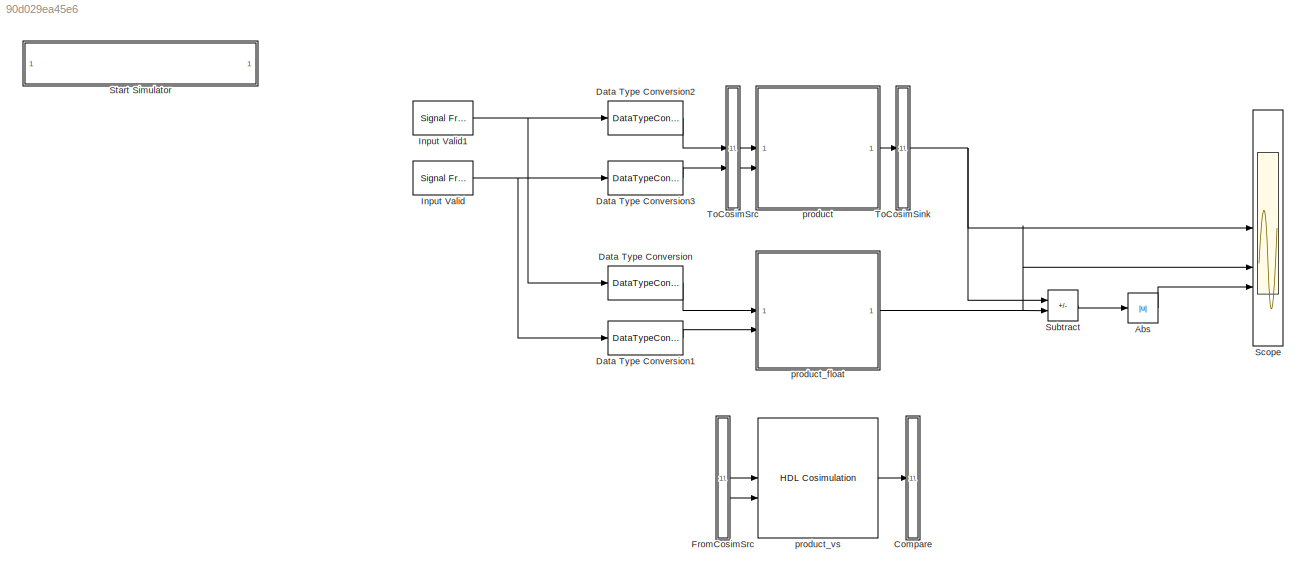
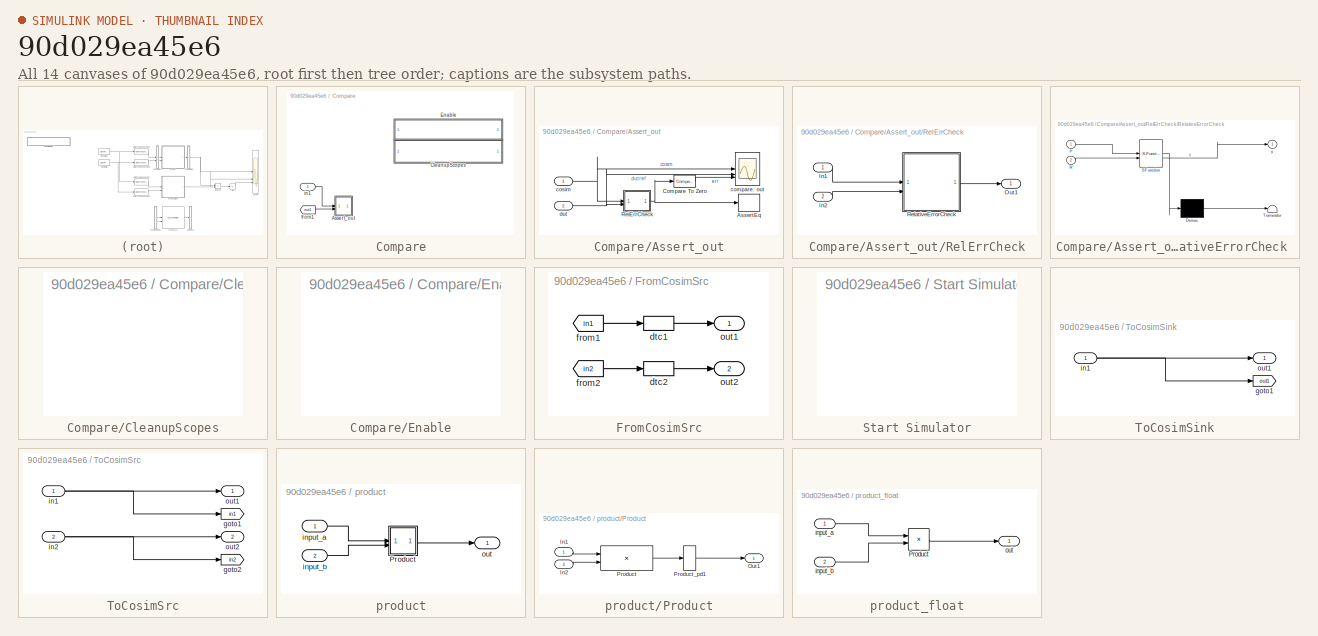
[diagram: thumbnail index - all 14 canvases of the model, root first then tree order]
MODEL slx_90d029ea45e6
KIND model
CONFIG AbsTol = auto
CONFIG EnableMultiTasking = off
CONFIG FixedStep = auto
CONFIG MaxStep = auto
CONFIG MinStep = auto
CONFIG RelTol = 1e-3
CONFIG SampleTimeConstraint = Unconstrained
CONFIG SolverName = VariableStepAuto
CONFIG StartTime = 0.0
CONFIG StopTime = 10.0
BLOCK [Abs] Abs
  SaturateOnIntegerOverflow = off
BLOCK [SubSystem] Compare
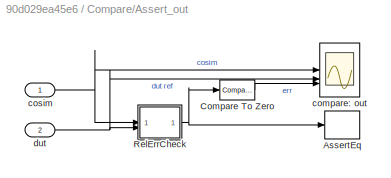
BLOCK [SubSystem] Compare/Assert_out
  LibrarySourceBlock = hdlmdlgenlib/AssertRelEq
BLOCK [Assertion] Compare/Assert_out/AssertEq
  StopWhenAssertionFail = off
BLOCK [Reference] Compare/Assert_out/Compare To Zero  REF=simulink/Logic and Bit
Operations/Compare
To Zero
  SourceBlock = simulink/Logic and Bit\nOperations/Compare\nTo Zero
  SourceType = Compare To Zero
BLOCK [SubSystem] Compare/Assert_out/RelErrCheck
BLOCK [Inport] Compare/Assert_out/RelErrCheck/In1
BLOCK [Inport] Compare/Assert_out/RelErrCheck/In2
  Port = 2
BLOCK [Outport] Compare/Assert_out/RelErrCheck/Out1
  VectorParamsAs1DForOutWhenUnconnected = off
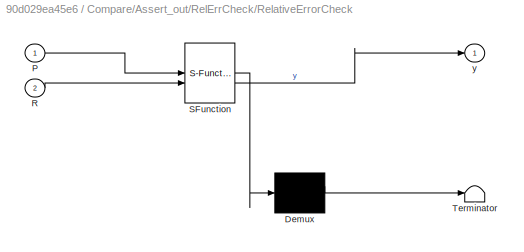
BLOCK [SubSystem] Compare/Assert_out/RelErrCheck/RelativeErrorCheck 
  ErrorFcn = Stateflow.Translate.translate
  PermitHierarchicalResolution = ExplicitOnly
  SFBlockType = MATLAB Function
  TreatAsAtomicUnit = on
BLOCK [Demux] Compare/Assert_out/RelErrCheck/RelativeErrorCheck / Demux 
  Outputs = 1
BLOCK [S-Function] Compare/Assert_out/RelErrCheck/RelativeErrorCheck / SFunction 
  EnableBusSupport = on
  FunctionName = sf_sfun
  Parameters = ToleranceValue
  PortCounts = [2 2]
  SFcnIsStateOwnerBlock = off
  SFunctionDeploymentMode = off
  Tag = Stateflow S-Function 8
BLOCK [Terminator] Compare/Assert_out/RelErrCheck/RelativeErrorCheck / Terminator 
BLOCK [Inport] Compare/Assert_out/RelErrCheck/RelativeErrorCheck /P
BLOCK [Inport] Compare/Assert_out/RelErrCheck/RelativeErrorCheck /R
  Port = 2
BLOCK [Outport] Compare/Assert_out/RelErrCheck/RelativeErrorCheck /y
  VectorParamsAs1DForOutWhenUnconnected = off
BLOCK [Scope] Compare/Assert_out/compare: out
  Floating = off
  NumInputPorts = 3
  ScopeSpecificationString = Simulink.scopes.TimeScopeBlockCfg('CurrentConfiguration', extmgr.ConfigurationSet(extmgr.Configuration('Core','General UI',true,'MessageLogAutoOpenMode','for warn/fail messages','ShowCloseAll',true,'ShowBringAllForward',true),extmgr.Configuration('Core','Source UI',true,'PlaybackToolbar',true),extmgr.Configuration('Sources','WiredSimulink',true,'PointsPerSignal',50000,'DataLoggingDecimation','1','...<+3528ch>
BLOCK [Inport] Compare/Assert_out/cosim
BLOCK [Inport] Compare/Assert_out/dut
  Port = 2
BLOCK [SubSystem] Compare/CleanupScopes
  OpenFcn = blkName = gcb; %self block\nidx = regexp(blkName, '/CleanupScopes$', 'once');\nblkParent = blkName(1:idx-1);\nblks=find_system(blkParent, 'LookUnderMasks', 'all','blocktype', 'Scope');\nfor itr = 1:length(blks)\n	 hScopeCfg = get_param(blks{itr},'ScopeConfiguration');\n	 hScopeCfg.Visible = ~ hScopeCfg.Visible;\nend\ndrawnow;
BLOCK [SubSystem] Compare/Enable
  OpenFcn = blkName = gcb;\nidx = regexp(blkName, '/Enable$', 'once');\nblkParent = blkName(1:idx-1);\nblks=find_system(blkParent, 'LookUnderMasks', 'all','blocktype', 'Assertion');\ne = get_param(blks{1}, 'Enabled');\nif strcmp(e, 'on'), f= 'off';, else, f = 'on';, end\nfor ii=1:length(blks), set_param(blks{ii}, 'Enabled', f);, end\nset_param(gcb, 'MaskDisplay',['fprintf(message(''hdlcoder:cosim:vnl_dblclick_assert...<+47ch>
BLOCK [From] Compare/from1
  GotoTag = out1
  TagVisibility = global
BLOCK [Inport] Compare/in1
BLOCK [DataTypeConversion] Data Type Conversion
  OutDataTypeStr = single
  RndMeth = Floor
  SaturateOnIntegerOverflow = off
BLOCK [DataTypeConversion] Data Type Conversion1
  OutDataTypeStr = single
  RndMeth = Floor
  SaturateOnIntegerOverflow = off
BLOCK [DataTypeConversion] Data Type Conversion2
  OutDataTypeStr = double
  RndMeth = Floor
  SaturateOnIntegerOverflow = off
BLOCK [DataTypeConversion] Data Type Conversion3
  OutDataTypeStr = double
  RndMeth = Floor
  SaturateOnIntegerOverflow = off
BLOCK [SubSystem] FromCosimSrc
BLOCK [DataTypeConversion] FromCosimSrc/dtc1
  OutDataTypeStr = double
BLOCK [DataTypeConversion] FromCosimSrc/dtc2
  OutDataTypeStr = double
BLOCK [From] FromCosimSrc/from1
  GotoTag = in1
  TagVisibility = global
BLOCK [From] FromCosimSrc/from2
  GotoTag = in2
  TagVisibility = global
BLOCK [Outport] FromCosimSrc/out1
BLOCK [Outport] FromCosimSrc/out2
  Port = 2
BLOCK [Reference] Input Valid  REF=dspsrcs4/Signal From
Workspace
  SourceBlock = dspsrcs4/Signal From\nWorkspace
  SourceType = Signal From Workspace
BLOCK [Reference] Input Valid1  REF=dspsrcs4/Signal From
Workspace
  SourceBlock = dspsrcs4/Signal From\nWorkspace
  SourceType = Signal From Workspace
BLOCK [Scope] Scope
  Floating = off
  NumInputPorts = 3
  ScopeSpecificationString = Simulink.scopes.TimeScopeBlockCfg('CurrentConfiguration', extmgr.ConfigurationSet(extmgr.Configuration('Core','General UI',true),extmgr.Configuration('Core','Source UI',true),extmgr.Configuration('Sources','WiredSimulink',true,'DataLoggingSaveFormat','Array','DataLoggingLimitDataPoints',true,'DataLoggingDecimation','1'),extmgr.Configuration('Visuals','Time Domain',true,'SerializedDisplays',{struct...<+3283ch>
BLOCK [SubSystem] Start Simulator
  OpenFcn = cosimDirName = pwd;\ncd 'hdl_prj/hdlsrc/HDLFixedPoint';\n[s,r] = system('vivado -mode batch -source gm_HDLFixedPoint_vs.tcl','-echo');\ncd (cosimDirName);\nclear cosimDirName;\nif s\n   error('Failed to create Vivado HDL design DLL using script gm_HDLFixedPoint_vs.tcl.');\nend
BLOCK [Sum] Subtract
  IconShape = rectangular
  Inputs = +-
BLOCK [SubSystem] ToCosimSink
BLOCK [Goto] ToCosimSink/goto1
  GotoTag = out1
  TagVisibility = global
BLOCK [Inport] ToCosimSink/in1
BLOCK [Outport] ToCosimSink/out1
BLOCK [SubSystem] ToCosimSrc
BLOCK [Goto] ToCosimSrc/goto1
  GotoTag = in1
  TagVisibility = global
BLOCK [Goto] ToCosimSrc/goto2
  GotoTag = in2
  TagVisibility = global
BLOCK [Inport] ToCosimSrc/in1
BLOCK [Inport] ToCosimSrc/in2
  Port = 2
BLOCK [Outport] ToCosimSrc/out1
BLOCK [Outport] ToCosimSrc/out2
  Port = 2
BLOCK [SubSystem] product
BLOCK [SubSystem] product/Product
BLOCK [Inport] product/Product/In1
BLOCK [Inport] product/Product/In2
  Port = 2
BLOCK [Outport] product/Product/Out1
BLOCK [Product] product/Product/Product
  Inputs = **
  OutDataTypeStr = double
  SampleTime = 1
BLOCK [Delay] product/Product/Product_pd1
  DelayLength = 9
  InputPortMap = u0
BLOCK [Inport] product/input_a
  OutDataTypeStr = double
  PortDimensions = 1
  SampleTime = 1
BLOCK [Inport] product/input_b
  OutDataTypeStr = double
  Port = 2
  PortDimensions = 1
  SampleTime = 1
BLOCK [Outport] product/out
  SampleTime = 1
BLOCK [SubSystem] product_float
BLOCK [Product] product_float/Product
BLOCK [Inport] product_float/input_a
BLOCK [Inport] product_float/input_b
  Port = 2
BLOCK [Outport] product_float/out
BLOCK [Reference] product_vs  REF=vivadosimlib/HDL Cosimulation
  SourceBlock = vivadosimlib/HDL Cosimulation
  SourceType = Simulink and Vivado Simulator Cosimulation
  UserDataPersistent = on
LINE Abs:1 -> Scope:3
LINE Compare/Assert_out/Compare To Zero:1 -> Compare/Assert_out/compare: out:3
LINE Compare/Assert_out/RelErrCheck/In1:1 -> Compare/Assert_out/RelErrCheck/RelativeErrorCheck :1
LINE Compare/Assert_out/RelErrCheck/In2:1 -> Compare/Assert_out/RelErrCheck/RelativeErrorCheck :2
LINE Compare/Assert_out/RelErrCheck/RelativeErrorCheck :1 -> Compare/Assert_out/RelErrCheck/Out1:1
NET Compare/Assert_out/RelErrCheck:1 -> Compare/Assert_out/AssertEq:1, Compare/Assert_out/Compare To Zero:1
NET Compare/Assert_out/cosim:1 -> Compare/Assert_out/RelErrCheck:1, Compare/Assert_out/compare: out:1
NET Compare/Assert_out/dut:1 -> Compare/Assert_out/RelErrCheck:2, Compare/Assert_out/compare: out:2
LINE Compare/from1:1 -> Compare/Assert_out:2
LINE Compare/in1:1 -> Compare/Assert_out:1
LINE Data Type Conversion1:1 -> product_float:2
LINE Data Type Conversion2:1 -> ToCosimSrc:1
LINE Data Type Conversion3:1 -> ToCosimSrc:2
LINE Data Type Conversion:1 -> product_float:1
LINE FromCosimSrc/dtc1:1 -> FromCosimSrc/out1:1
LINE FromCosimSrc/dtc2:1 -> FromCosimSrc/out2:1
LINE FromCosimSrc/from1:1 -> FromCosimSrc/dtc1:1
LINE FromCosimSrc/from2:1 -> FromCosimSrc/dtc2:1
LINE FromCosimSrc:1 -> product_vs:1
LINE FromCosimSrc:2 -> product_vs:2
NET Input Valid1:1 -> Data Type Conversion2:1, Data Type Conversion:1
NET Input Valid:1 -> Data Type Conversion1:1, Data Type Conversion3:1
LINE Subtract:1 -> Abs:1
NET ToCosimSink/in1:1 -> ToCosimSink/goto1:1, ToCosimSink/out1:1
NET ToCosimSink:1 -> Scope:1, Subtract:1
NET ToCosimSrc/in1:1 -> ToCosimSrc/goto1:1, ToCosimSrc/out1:1
NET ToCosimSrc/in2:1 -> ToCosimSrc/goto2:1, ToCosimSrc/out2:1
LINE ToCosimSrc:1 -> product:1
LINE ToCosimSrc:2 -> product:2
LINE product/Product/In1:1 -> product/Product/Product:1
LINE product/Product/In2:1 -> product/Product/Product:2
LINE product/Product/Product:1 -> product/Product/Product_pd1:1
LINE product/Product/Product_pd1:1 -> product/Product/Out1:1
LINE product/Product:1 -> product/out:1
LINE product/input_a:1 -> product/Product:1
LINE product/input_b:1 -> product/Product:2
LINE product:1 -> ToCosimSink:1
LINE product_float/Product:1 -> product_float/out:1
LINE product_float/input_a:1 -> product_float/Product:1
LINE product_float/input_b:1 -> product_float/Product:2
NET product_float:1 -> Scope:2, Subtract:2
LINE product_vs:1 -> Compare:1
note: NET lines group one-source signal fan-out (src -> all destinations, sorted); 1:1 wires keep LINE
CHART Compare/Assert_out/RelErrCheck/RelativeErrorCheck
 states=1 transitions=1
  STATE_LABEL 'eML_blk_kernel()'
  STATE_LABEL "SCRIPT:\n% Check if the relative error of R with respect to P is below\n% ToleranceValue\n% P, R are floating-point\nfunction y = relErrCheck(P,R, ToleranceValue)\n    tol = ToleranceValue;\n    sz = numel(P);\n    assert(sz == numel(R), 'Inputs P and R have different sizes.');\n    y = false(1, sz);\n\n    for ii=1:sz\n        if (isnan(P(ii)) || isnan(R(ii)))\n            if (isnan(P(ii)) && isnan(R(ii)))\n ...<+347ch>"
CHART  states=0 transitions=0
